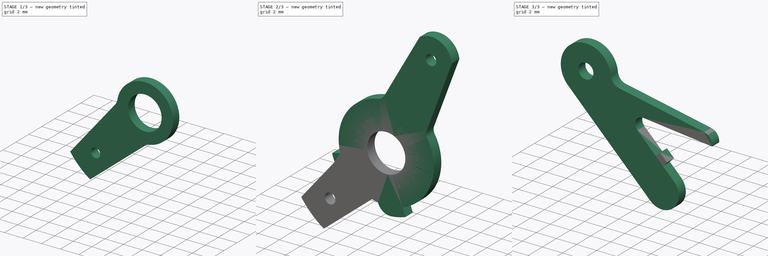
[diagram: build sequence overview — one tinted view per stage of 3, left to right]
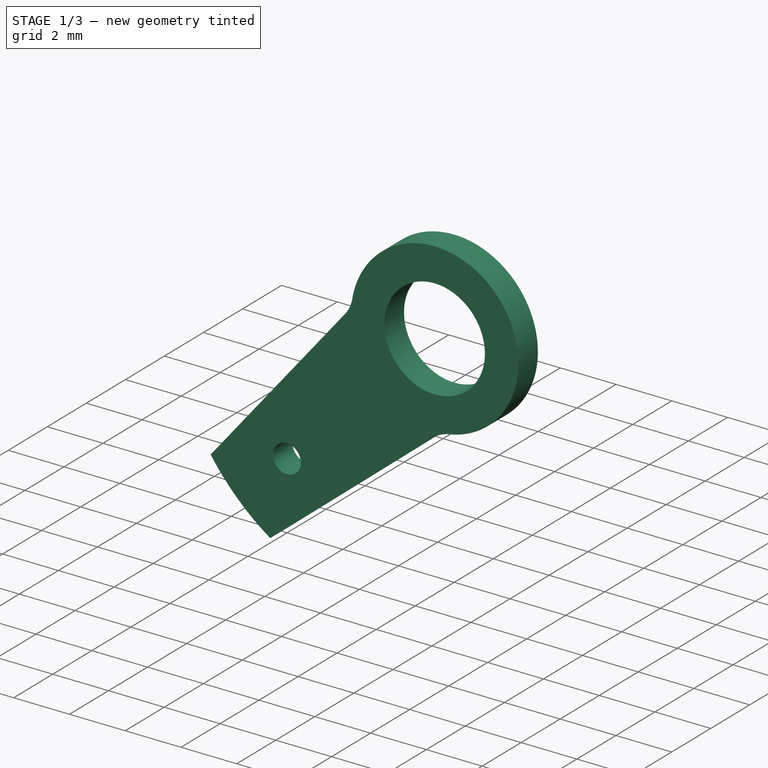
[diagram: stage 1 of 3 — iso view after this stage's code; geometry added in this stage tinted green]
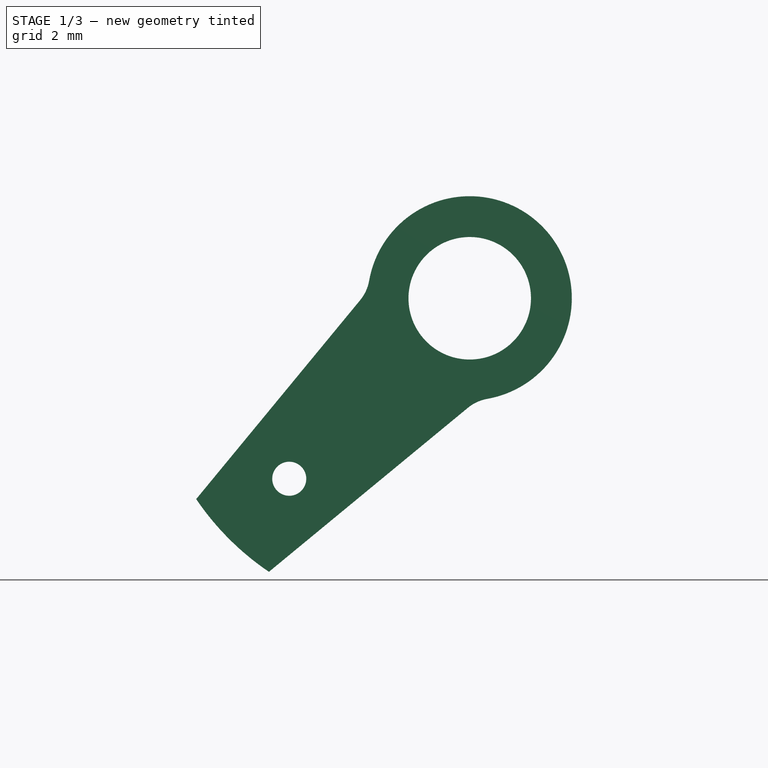
[diagram: stage 1 of 3 — front view after this stage's code; geometry added in this stage tinted green]
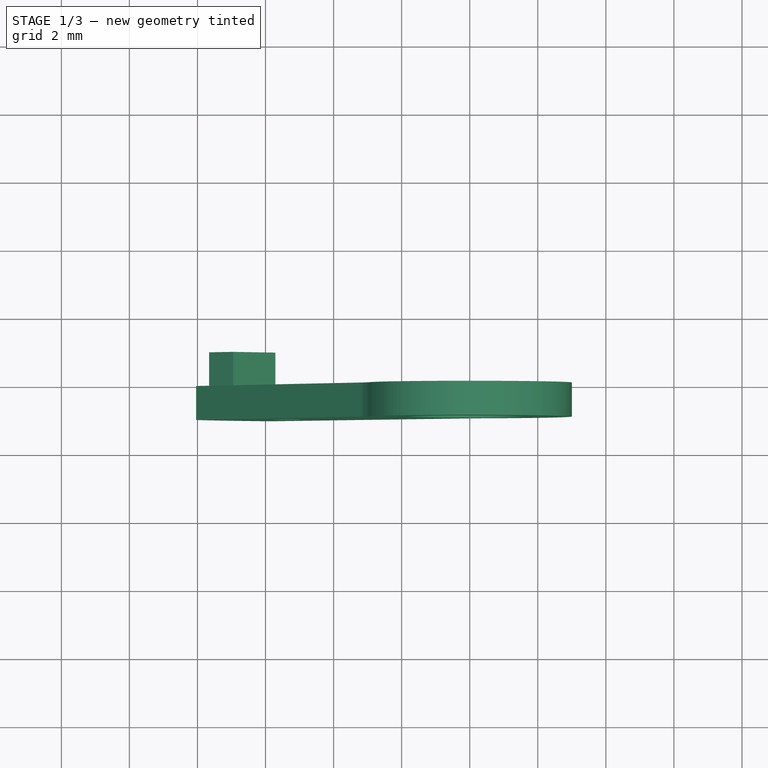
[diagram: stage 1 of 3 — top view after this stage's code; geometry added in this stage tinted green]
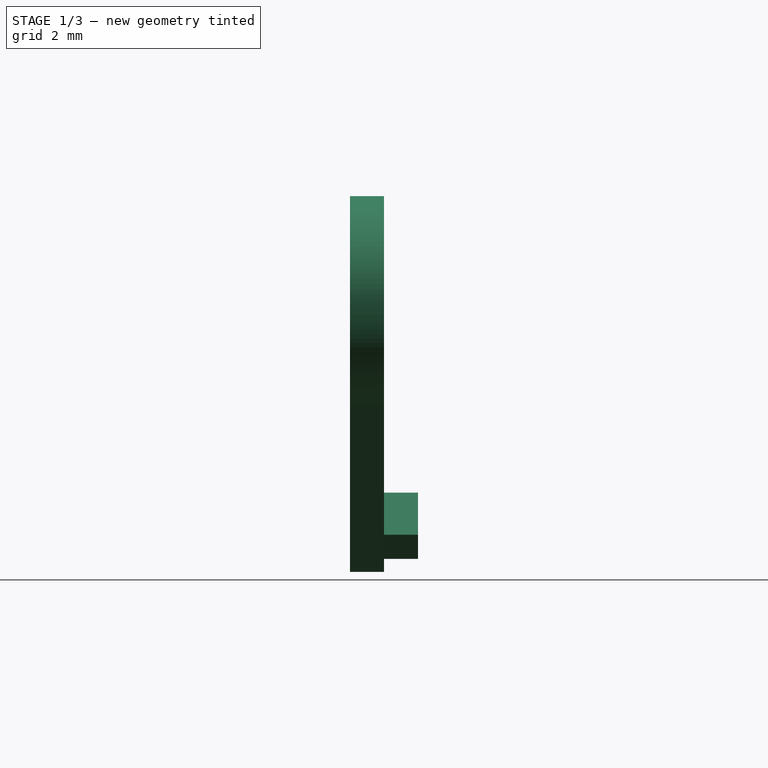
[diagram: stage 1 of 3 — right view after this stage's code; geometry added in this stage tinted green]
FCSTD DOCUMENT  (FreeCAD 0.19R24366 (Git))
Label: corliss
License: All rights reserved
LicenseURL: http://en.wikipedia.org/wiki/All_rights_reserved
objects: Sketcher::SketchObject×5, PartDesign::Pad×5, App::Part×5, PartDesign::Body×4, PartDesign::ShapeBinder×3, PartDesign::CoordinateSystem×3, App::DocumentObjectGroup×3, Image::ImagePlane×1, Spreadsheet::Sheet×1, App::FeaturePython×1
note: 25 computed .brp shape members not serialized (recipe doc carries the construction recipe); baked Part::Feature solids carry a one-line shape summary decoded from their .brp

FEATURE [PartDesign::Body] Body  label="Governer Arm Body"
  Group = -> [Sketch001,Pad]
  Origin = -> Origin004
  Tip = -> Pad
FEATURE [PartDesign::Pad] Pad001  label="Arm Body Pad 1"
  Direction = (1,1,1)
  Length = 1
  Length2 = 100
  Placement = pos=(0,0,0) rot=(1,0,0;1.5708rad)
  Profile = -> Sketch
  Type = 0
FEATURE [Sketcher::SketchObject] Sketch002  label="Projected Block Front"
  ExternalGeometry = -> [Sketch]
  FullyConstrained = true
  Placement = pos=(0,0,0) rot=(1,0,0;1.5708rad)
  expr: Constraints[13] = <<Master Values>>.ArmProjectedBlockHeight
  expr: Constraints[12] = <<Master Values>>.ArmProjectedBlockBreadth
  sketch-geometry (6):
    g0: LineSegment StartX=0 StartY=0 StartZ=0 EndX=-5.3033 EndY=-5.3033 EndZ=0
    g1: LineSegment StartX=-5.3033 StartY=-5.3033 StartZ=0 EndX=-7.07107 EndY=-7.07107 EndZ=0
    g2: LineSegment StartX=-6.94874 StartY=-5.7113 StartZ=0 EndX=-5.7113 EndY=-6.94874 EndZ=0
    g3: LineSegment StartX=-5.7113 StartY=-6.94874 StartZ=0 EndX=-6.41841 EndY=-7.65585 EndZ=0
    g4: LineSegment StartX=-6.94874 StartY=-5.7113 StartZ=0 EndX=-7.65585 EndY=-6.41841 EndZ=0
    g5: LineSegment StartX=-7.65585 StartY=-6.41841 StartZ=0 EndX=-6.41841 EndY=-7.65585 EndZ=0
  constraints (16):
    c: Coincident(g0,g-1)
    c: Coincident(g0,g-4)
    c: Coincident(g1,g0)
    c: PointOnObject(g1,g-3)
    c: Parallel(g0,g1)
    c: Coincident(g3,g2)
    c: PointOnObject(g3,g-3)
    c: Coincident(g4,g2)
    c: PointOnObject(g4,g-3)
    c: Perpendicular(g2,g4)
    c: Perpendicular(g3,g2)
    c: Symmetric(g2,g2,g1)
    c: Distance(g2) = 1.75
    c: Distance(g4) = 1
    c: Coincident(g5,g3)
    c: Coincident(g4,g5)
FEATURE [PartDesign::Pad] Pad002  label="Projected Block"
  BaseFeature = -> Pad001
  Direction = (1,0,1)
  Length = 1
  Length2 = 100
  Placement = pos=(0,0,0) rot=(1,0,0;1.5708rad)
  Profile = -> Sketch002
  Reversed = true
  Type = 0
  expr: Length = <<Master Values>>.ArmProjectedBlockThinkness
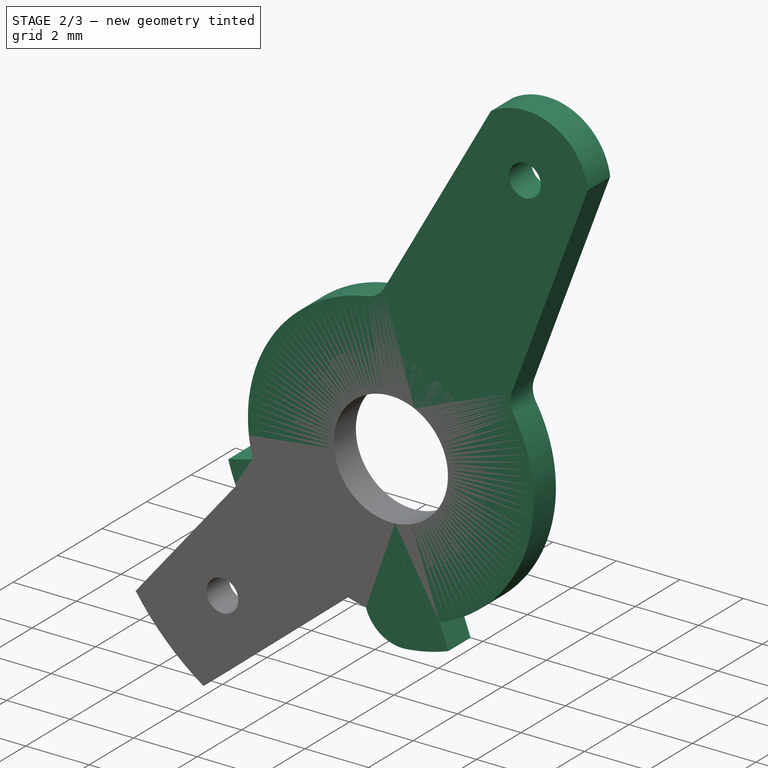
[diagram: stage 2 of 3 — iso view after this stage's code; geometry added in this stage tinted green]
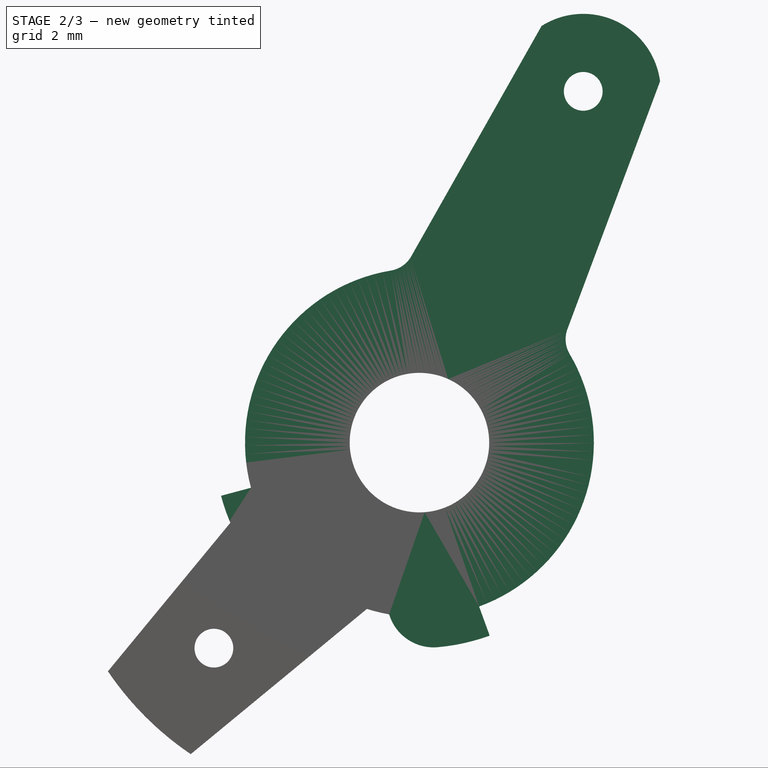
[diagram: stage 2 of 3 — front view after this stage's code; geometry added in this stage tinted green]
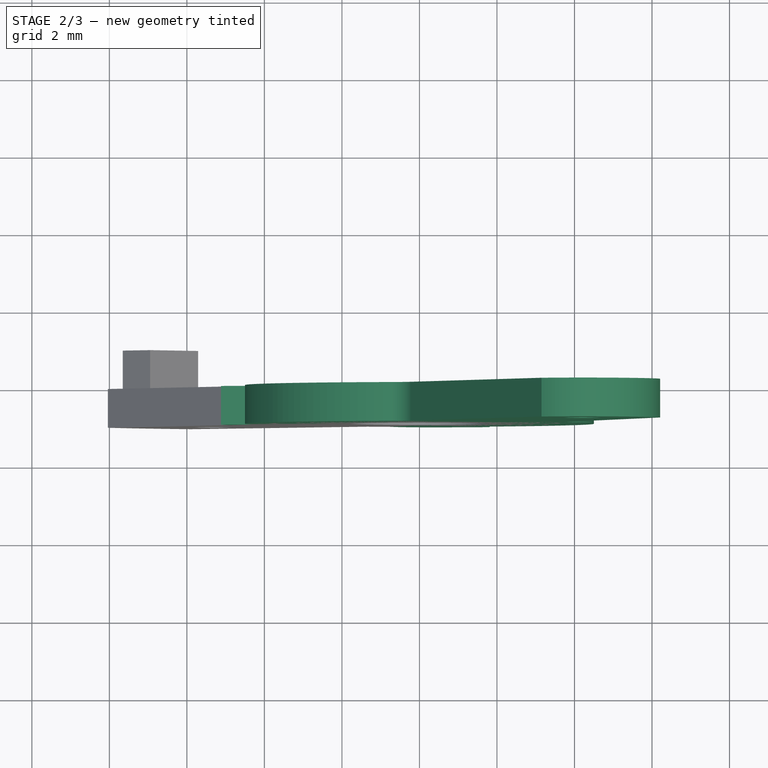
[diagram: stage 2 of 3 — top view after this stage's code; geometry added in this stage tinted green]
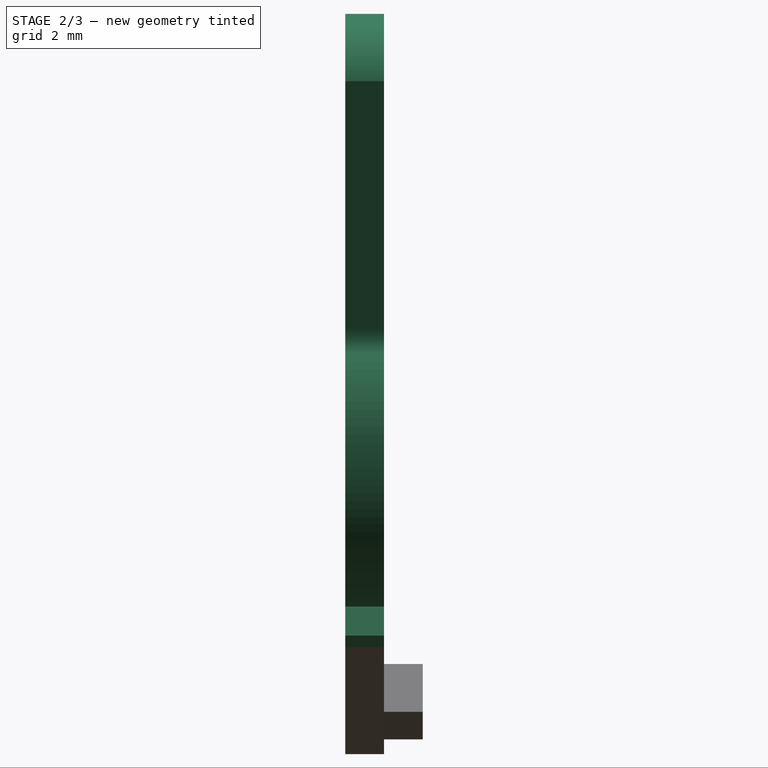
[diagram: stage 2 of 3 — right view after this stage's code; geometry added in this stage tinted green]
FEATURE [Sketcher::SketchObject] Sketch  label="Arm Front"
  FullyConstrained = true
  MapMode = 5
  Placement = pos=(0,0,0) rot=(1,0,0;1.5708rad)
  expr: Constraints[27] = <<Master Values>>.ArmDashpotPinOffset
  expr: Constraints[23] = <<Master Values>>.ArmRadiusAngle
  expr: Constraints[24] = <<Master Values>>.ArmRadiusAngle
  expr: Constraints[12] = <<Master Values>>.ArmFilletRadius
  expr: Constraints[9] = <<Master Values>>.ValveStemRadius
  expr: Constraints[14] = <<Master Values>>.ArmTaperAngle
  expr: Constraints[28] = <<Master Values>>.DashpotPinRadius
  expr: Constraints[11] = <<Master Values>>.ArmLength
  expr: Constraints[13] = <<Master Values>>.ArmFilletRadius
  expr: Constraints[16] = 11° / 2
  expr: Constraints[18] = <<Master Values>>.ArmAngle
  expr: Constraints[10] = <<Master Values>>.ArmRadius
  expr: Constraints[17] = <<Master Values>>.ArmEndRadius
  sketch-geometry (11):
    g0: Circle CenterX=0 CenterY=0 CenterZ=0 NormalX=0 NormalY=0 NormalZ=1 AngleXU=0 Radius=1.8
    g1: ArcOfCircle CenterX=0 CenterY=0 CenterZ=0 NormalX=0 NormalY=0 NormalZ=1 AngleXU=0 Radius=3 StartAngle=4.88692 EndAngle=9.25025
    g2: LineSegment StartX=0 StartY=0 StartZ=0 EndX=-7.07107 EndY=-7.07107 EndZ=0
    g3: LineSegment StartX=-3.2209 StartY=-0.057093 StartZ=0 EndX=-8.03787 EndY=-5.90054 EndZ=0
    g4: LineSegment StartX=-0.057093 StartY=-3.2209 StartZ=0 EndX=-5.90054 EndY=-8.03787 EndZ=0
    g5: ArcOfCircle CenterX=-4.18543 CenterY=0.738005 CenterZ=0 NormalX=0 NormalY=0 NormalZ=1 AngleXU=0 Radius=1.25 StartAngle=5.59378 EndAngle=6.10865
    g6: ArcOfCircle CenterX=0.738005 CenterY=-4.18543 CenterZ=0 NormalX=0 NormalY=0 NormalZ=1 AngleXU=0 Radius=1.25 StartAngle=1.74533 EndAngle=2.2602
    g7: ArcOfCircle CenterX=-1.41421 CenterY=-1.41421 CenterZ=0 NormalX=0 NormalY=0 NormalZ=1 AngleXU=0 Radius=8 StartAngle=3.73693 EndAngle=4.11705
    g8: LineSegment StartX=0 StartY=0 StartZ=0 EndX=-2.95442 EndY=0.520945 EndZ=0
    g9: LineSegment StartX=0.520945 StartY=-2.95442 StartZ=0 EndX=0 EndY=0 EndZ=0
    g10: Circle CenterX=-5.3033 CenterY=-5.3033 CenterZ=0 NormalX=0 NormalY=0 NormalZ=1 AngleXU=0 Radius=0.5
  constraints (29):
    c: Coincident(g1,g0)
    c: Coincident(g2,g0)
    c: Tangent(g1,g5) = 1.5708
    c: Tangent(g3,g5) = 1.5708
    c: Tangent(g1,g6) = 1.5708
    c: Tangent(g4,g6) = -1.5708
    c: Coincident(g7,g3)
    c: Coincident(g7,g4)
    c: PointOnObject(g2,g7)
    c: Radius(g0) = 1.8
    c: Radius(g1) = 3
    c: Distance(g2) = 10
    c: Radius(g5) = 1.25
    c: Radius(g6) = 1.25
    c: Angle(g4,g3) = 0.191986
    c: Perpendicular(g7,g2)
    c: Angle(g2,g3) = 0.0959931
    c: Radius(g7) = 8
    c: Angle(g2,g-2) = 0.785398
    c: Coincident(g8,g0)
    c: Coincident(g8,g1)
    c: Coincident(g9,g1)
    c: Coincident(g9,g0)
    c: Angle(g8,g2) = 0.959931
    c: Angle(g2,g9) = 0.959931
    c: Coincident(g-1,g0)
    c: PointOnObject(g10,g2)
    c: Distance(g2,g10) = 2.5
    c: Radius(g10) = 0.5
FEATURE [Image::ImagePlane] ImagePlane  label="Corliss Valve"
  Placement = pos=(-5.15,0.1,-4.22) rot=(-1,0,0;4.71239rad)
  XSize = 24
  YSize = 33
FEATURE [Spreadsheet::Sheet] Spreadsheet  label="Master Values"
  cells = A1=ValveStemRadius; B1(ValveStemRadius)==1.8mm; A2=ValveStemLength; B2(ValveStemLength)==30mm; A3=ArmRadius; B3(ArmRadius)==3mm; A4=ArmRadiusAngle; B4(ArmRadiusAngle)==55deg; A5=ArmAngle; B5(ArmAngle)==45deg; A6=ArmLength; B6(ArmLength)==10mm; A7=ArmTaperAngle; B7(ArmTaperAngle)==11deg; A8=ArmFilletRadius; B8(ArmFilletRadius)==1.25mm; A9=ArmEndRadius; B9(ArmEndRadius)==8mm; A10=ArmThinkness; B10(ArmThinkness)==1mm; A11=ArmDashpotPinOffset; B11(ArmDashpotPinOffset)==2.5mm; A12=ArmProjectedBlockBreadth; B12(ArmProjectedBlockBreadth)==1.75mm; A13=ArmProjectedBlockHeight; B13(ArmProjectedBlockHeight)==1mm; A14=ArmProjectedBlockThinkness; B14(ArmProjectedBlockThinkness)==1mm; A15=DashpotPinRadius; B15(DashpotPinRadius)==0.5mm; A16=GovernerArmThickness; B16(GovernerArmThickness)==1mm; A17=GovenerArmRadius; B17(GovenerArmRadius)==4.5mm; A18=GovernerArmRadiusAngle; B18(GovernerArmRadiusAngle)==55deg; A19=GovernerArmLength; B19(GovernerArmLength)==12mm; A20=GovernerArmAngle; B20(GovernerArmAngle)==25deg; A21=GovernerArmTaperAngle; B21(GovernerArmTaperAngle)==9deg; A22=GovernerArmFilletRadius; B22(GovernerArmFilletRadius)==0.75mm; A23=GovernerArmEndRadius; B23(GovernerArmEndRadius)==2mm; A24=GovernerArmGovernerPinOffset; B24(GovernerArmGovernerPinOffset)==2mm; A25=GovernerArmReleaseCamStartAngle; B25(GovernerArmReleaseCamStartAngle)==165deg; A26=GovernerArmReleaseCamRolloffRadius; B26(GovernerArmReleaseCamRolloffRadius)==1.2mm; A27=GovernerArmReleaseCamEndAngle; B27(GovernerArmReleaseCamEndAngle)==30deg; A28=GovernerArmReleaseCamHeight; B28(GovernerArmReleaseCamHeight)==0.8mm; A29=GovernerArmSafteyCamStartAngle; B29(GovernerArmSafteyCamStartAngle)==70deg; A30=GovernerArmSafteyCamRolloffRadius; B30(GovernerArmSafteyCamRolloffRadius)==B26; A31=GovernerArmSafteyCamEndAngle; B31(GovernerArmSafteyCamEndAngle)==B27; A32=GovernerArmSafteyCamHeight; B32(GovernerArmSafteyCamHeight)==B28; A33=GovernerPinRadius; B33(GovernerPinRadius)==0.5mm; A34=BellCrankThickness; B34(BellCrankThickness)==1mm; A35=BellCrankRadius; B35(BellCrankRadius)==B17; A36=BellCrankWristLength; B36(BellCrankWristLength)==16mm; A37=BellCrankClawLength; B37(BellCrankClawLength)==16mm; A38=BellCrankWristEndRadius; B38(BellCrankWristEndRadius)==3mm; A39=BellCrankClawEndRadius; B39(BellCrankClawEndRadius)==2.5mm; A40=BellCrankClawAngle; B40(BellCrankClawAngle)==172deg; A41=BellCrankWristAngle; B41(BellCrankWristAngle)==82deg; A42=BellCrankFilletRadius; B42(BellCrankFilletRadius)==3mm; A43=WristPlatePinRadius; B43(WristPlatePinRadius)==0.5mm; A44=ClawPinRadius; B44(ClawPinRadius)==0.75mm; A45=ClawThickness; B45(ClawThickness)==1mm; A46=ClawRadius; B46(ClawRadius)==B39; A47=ClawDriveArmAngle; B47(ClawDriveArmAngle)==45deg; A48=ClawDriveArmLength; B48(ClawDriveArmLength)==13mm; A49=ClawDriveArmEndRadius; B49(ClawDriveArmEndRadius)==1.5mm; A50=ClawReleaseArmEndRadius; B50(ClawReleaseArmEndRadius)==1mm; A51=ClawReleaseArmAngle; B51(ClawReleaseArmAngle)==5deg; A52=ClawReleaseArmLength; B52(ClawReleaseArmLength)==12mm; A53=ClawArmFilletRadius; B53(ClawArmFilletRadius)==0.75mm; A54=ClawReleaseArmFilletRadius; B54(ClawReleaseArmFilletRadius)==1mm; A55=ClawDriveBlockLength; B55(ClawDriveBlockLength)==1mm; A56=ClawDriveBlockHeightProportion; B56(ClawDriveBlockHeightProportion)=0.75
FEATURE [Sketcher::SketchObject] Sketch001  label="Governer Arm Front"
  FullyConstrained = true
  MapMode = 5
  Placement = pos=(0,0,0) rot=(1,0,0;1.5708rad)
  Support = -> [XZ_Plane004]
  expr: Constraints[13] = <<Master Values>>.GovernerArmRadiusAngle / 2
  expr: Constraints[49] = <<Master Values>>.GovernerArmSafteyCamEndAngle
  expr: Constraints[45] = <<Master Values>>.GovernerArmSafteyCamHeight
  expr: Constraints[42] = <<Master Values>>.GovernerArmSafteyCamStartAngle
  expr: Constraints[9] = <<Master Values>>.GovernerArmTaperAngle / 2
  expr: Constraints[53] = <<Master Values>>.GovernerArmSafteyCamRolloffRadius
  expr: Constraints[40] = <<Master Values>>.GovernerArmReleaseCamRolloffRadius
  expr: Constraints[7] = <<Master Values>>.GovernerPinRadius
  expr: Constraints[29] = <<Master Values>>.GovernerArmReleaseCamStartAngle
  expr: Constraints[34] = <<Master Values>>.GovernerArmReleaseCamHeight
  expr: Constraints[35] = <<Master Values>>.GovernerArmReleaseCamEndAngle
  expr: Constraints[14] = <<Master Values>>.GovernerArmRadiusAngle / 2
  expr: Constraints[27] = <<Master Values>>.GovernerArmEndRadius
  expr: Constraints[19] = <<Master Values>>.GovernerArmFilletRadius
  expr: Constraints[20] = <<Master Values>>.GovernerArmFilletRadius
  expr: Constraints[11] = <<Master Values>>.GovernerArmLength
  expr: .Constraints.GovernerArmRadius = <<Master Values>>.GovenerArmRadius
  expr: Constraints[10] = <<Master Values>>.GovernerArmTaperAngle / 2
  expr: Constraints[5] = <<Master Values>>.GovernerArmAngle
  expr: .Constraints.GovernerPinRadius = <<Master Values>>.ValveStemRadius
  expr: Constraints[8] = <<Master Values>>.GovernerArmGovernerPinOffset
  sketch-geometry (23):
    g0: ArcOfCircle CenterX=0 CenterY=0 CenterZ=0 NormalX=0 NormalY=0 NormalZ=1 AngleXU=0 Radius=4.5 StartAngle=1.73588 EndAngle=3.40339
    g1: Circle CenterX=0 CenterY=0 CenterZ=0 NormalX=0 NormalY=0 NormalZ=1 AngleXU=0 Radius=1.8
    g2: LineSegment StartX=0 StartY=0 StartZ=0 EndX=5.07142 EndY=10.8757 EndZ=0
    g3: LineSegment StartX=-0.209979 StartY=4.80931 StartZ=0 EndX=3.15071 EndY=10.7493 EndZ=0
    g4: LineSegment StartX=3.81912 StartY=2.93051 StartZ=0 EndX=6.20921 EndY=9.3231 EndZ=0
    g5: Circle CenterX=4.22618 CenterY=9.06308 CenterZ=0 NormalX=0 NormalY=0 NormalZ=1 AngleXU=0 Radius=0.5
    g6: LineSegment StartX=-0.209979 StartY=4.80931 StartZ=0 EndX=0 EndY=0 EndZ=0
    g7: LineSegment StartX=3.81912 StartY=2.93051 StartZ=0 EndX=0 EndY=0 EndZ=0
    g8: ArcOfCircle CenterX=4.52162 CenterY=2.66786 CenterZ=0 NormalX=0 NormalY=0 NormalZ=1 AngleXU=0 Radius=0.75 StartAngle=2.7838 EndAngle=3.67464
    g9: ArcOfCircle CenterX=-0.862746 CenterY=5.17863 CenterZ=0 NormalX=0 NormalY=0 NormalZ=1 AngleXU=0 Radius=0.75 StartAngle=4.87747 EndAngle=5.76831
    g10: ArcOfCircle CenterX=4.22618 CenterY=9.06308 CenterZ=0 NormalX=0 NormalY=0 NormalZ=1 AngleXU=0 Radius=2 StartAngle=0.130381 EndAngle=2.13855
    g11: LineSegment StartX=0 StartY=0 StartZ=0 EndX=-4.34667 EndY=-1.16469 EndZ=0
    g12: LineSegment StartX=0 StartY=0 StartZ=0 EndX=-3.18198 EndY=-3.18198 EndZ=0
    g13: LineSegment StartX=-4.34667 StartY=-1.16469 StartZ=0 EndX=-5.11941 EndY=-1.37174 EndZ=0
    g14: ArcOfCircle CenterX=0 CenterY=0 CenterZ=0 NormalX=0 NormalY=0 NormalZ=1 AngleXU=0 Radius=5.3 StartAngle=3.40339 EndAngle=3.66283
    g15: ArcOfCircle CenterX=-3.55554 CenterY=-2.04161 CenterZ=0 NormalX=0 NormalY=0 NormalZ=1 AngleXU=0 Radius=1.2 StartAngle=3.66283 EndAngle=5.02895
    g16: LineSegment StartX=0 StartY=0 StartZ=0 EndX=1.53909 EndY=-4.22862 EndZ=0
    g17: LineSegment StartX=1.53909 StartY=-4.22862 StartZ=0 EndX=1.81271 EndY=-4.98037 EndZ=0
    g18: ArcOfCircle CenterX=0 CenterY=0 CenterZ=0 NormalX=0 NormalY=0 NormalZ=1 AngleXU=0 Radius=5.3 StartAngle=4.80202 EndAngle=5.06145
    g19: LineSegment StartX=0 StartY=0 StartZ=0 EndX=-0.781417 EndY=-4.43163 EndZ=0
    g20: ArcOfCircle CenterX=0.366987 CenterY=-4.08354 CenterZ=0 NormalX=0 NormalY=0 NormalZ=1 AngleXU=0 Radius=1.2 StartAngle=3.4359 EndAngle=4.80202
    g21: ArcOfCircle CenterX=0 CenterY=0 CenterZ=0 NormalX=0 NormalY=0 NormalZ=1 AngleXU=0 Radius=4.5 StartAngle=5.06145 EndAngle=6.81624
    g22: ArcOfCircle CenterX=0 CenterY=0 CenterZ=0 NormalX=0 NormalY=0 NormalZ=1 AngleXU=0 Radius=4.5 StartAngle=3.92699 EndAngle=4.53786
  constraints (63):
    c: Coincident(g0,g-1)  'GovernerArmCentre'
    c: Radius(g1) = 1.8  'GovernerPinRadius'
    c: Radius(g0) = 4.5  'GovernerArmRadius'
    c: Coincident(g0,g1)  'GovernerArmCentre2'
    c: Coincident(g2,g0)
    c: Angle(g2,g-2) = 0.436332
    c: PointOnObject(g5,g2)
    c: Radius(g5) = 0.5
    c: Distance(g5,g2) = 2
    c: Angle(g3,g2) = 0.0785398
    c: Angle(g2,g4) = 0.0785398
    c: Distance(g2) = 12
    c: Coincident(g7,g6)
    c: Angle(g7,g2) = 0.479966
    c: Angle(g2,g6) = 0.479966
    c: Coincident(g6,g0)
    c: Tangent(g4,g8) = 1.5708
    c: Tangent(g3,g9) = -1.5708
    c: Tangent(g0,g9) = 1.5708
    c: Radius(g9) = 0.75
    c: Radius(g8) = 0.75
    c: Coincident(g3,g6)
    c: Coincident(g4,g7)
    c: Coincident(g10,g3)
    c: PointOnObject(g2,g10)
    c: Coincident(g10,g4)
    c: PointOnObject(g10,g2)
    c: Radius(g10) = 2
    c: Coincident(g11,g0)
    c: Angle(g11,g-1) = 2.87979
    c: Coincident(g12,g0)
    c: PointOnObject(g12,g0)
    c: Coincident(g13,g11)
    c: Parallel(g13,g11)
    c: Distance(g13) = 0.8
    c: Angle(g11,g12) = 0.523599
    c: Coincident(g13,g14)
    c: Coincident(g14,g0)
    c: Coincident(g15,g12)
    c: Tangent(g14,g15) = -1.5708
    c: Radius(g15) = 1.2
    c: Coincident(g16,g0)
    c: Angle(g16,g-1) = 1.22173
    c: Coincident(g17,g16)
    c: Parallel(g16,g17)
    c: Distance(g17) = 0.8
    c: Coincident(g18,g0)
    c: Coincident(g18,g17)
    c: Coincident(g19,g0)
    c: Angle(g19,g16) = 0.523599
    c: PointOnObject(g19,g0)
    c: Coincident(g20,g19)
    c: Tangent(g20,g18) = -1.5708
    c: Radius(g20) = 1.2
    c: Equal(g0,g21)
    c: PointOnObject(g22,g20)
    c: Coincident(g21,g16)
    c: Coincident(g0,g21)
    c: Equal(g0,g22)
    c: Coincident(g0,g11)
    c: PointOnObject(g22,g15)
    c: Coincident(g0,g22)
    c: Tangent(g21,g8) = 1.5708
FEATURE [PartDesign::Pad] Pad
  Direction = (1,1,1)
  Length = 1
  Length2 = 100
  Placement = pos=(0,0,0) rot=(1,0,0;1.5708rad)
  Profile = -> Sketch001
  Type = 0
  expr: Length = <<Master Values>>.GovernerArmThickness
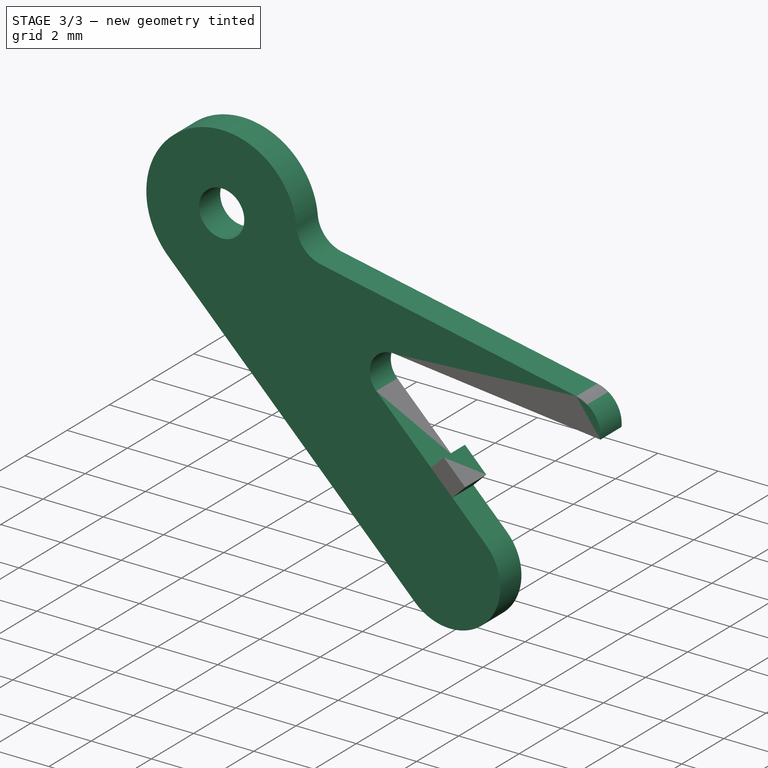
[diagram: stage 3 of 3 — iso view after this stage's code; geometry added in this stage tinted green]
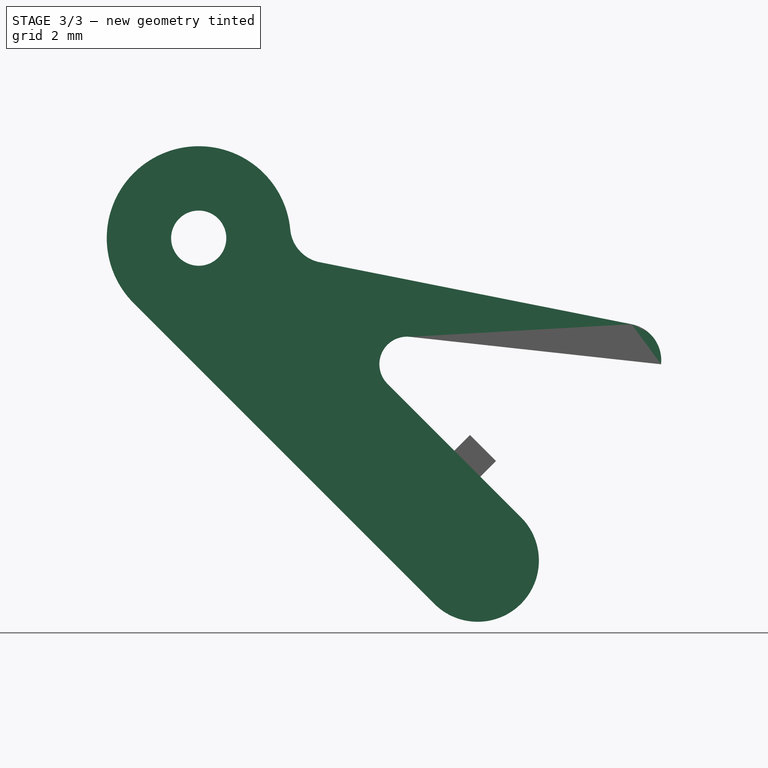
[diagram: stage 3 of 3 — front view after this stage's code; geometry added in this stage tinted green]
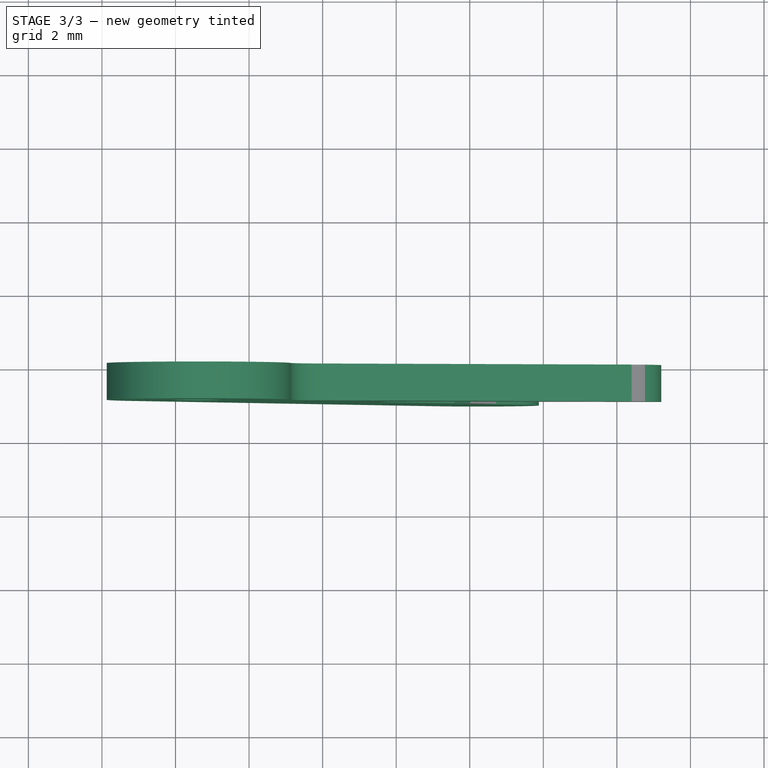
[diagram: stage 3 of 3 — top view after this stage's code; geometry added in this stage tinted green]
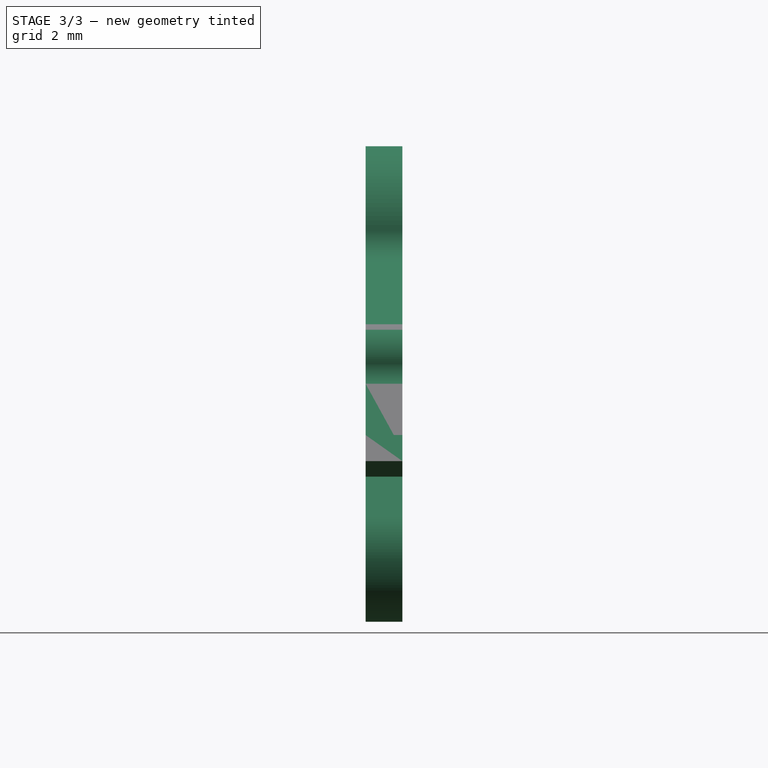
[diagram: stage 3 of 3 — right view after this stage's code; geometry added in this stage tinted green]
FEATURE [PartDesign::Body] Body001  label="Arm Body"
  Group = -> [Sketch,Pad001,Sketch002,Pad002]
  Origin = -> Origin003
  Tip = -> Pad002
FEATURE [Sketcher::SketchObject] Sketch003  label="Bell Crank Front"
  FullyConstrained = true
  MapMode = 5
  Placement = pos=(0,0,0) rot=(1,0,0;1.5708rad)
  Support = -> [XZ_Plane006]
  expr: Constraints[30] = <<Master Values>>.ValveStemRadius
  expr: Constraints[24] = <<Master Values>>.BellCrankFilletRadius
  expr: Constraints[7] = <<Master Values>>.BellCrankClawLength
  expr: Constraints[28] = <<Master Values>>.WristPlatePinRadius
  expr: Constraints[26] = <<Master Values>>.ClawPinRadius
  expr: Constraints[6] = <<Master Values>>.BellCrankWristLength
  expr: Constraints[5] = <<Master Values>>.BellCrankClawAngle
  expr: Constraints[4] = <<Master Values>>.BellCrankWristAngle
  expr: Constraints[10] = <<Master Values>>.BellCrankClawEndRadius
  expr: Constraints[1] = <<Master Values>>.BellCrankRadius
  sketch-geometry (13):
    g0: ArcOfCircle CenterX=0 CenterY=0 CenterZ=0 NormalX=0 NormalY=0 NormalZ=1 AngleXU=0 Radius=4.5 StartAngle=0 EndAngle=1.85912
    g1: LineSegment StartX=0 StartY=0 StartZ=0 EndX=-15.8443 EndY=-2.22677 EndZ=0
    g2: LineSegment StartX=0 StartY=0 StartZ=0 EndX=2.22677 EndY=-15.8443 EndZ=0
    g3: ArcOfCircle CenterX=-13.3686 CenterY=-1.87884 CenterZ=0 NormalX=0 NormalY=0 NormalZ=1 AngleXU=0 Radius=2.5 StartAngle=1.85912 EndAngle=4.70332
    g4: LineSegment StartX=-14.0795 StartY=0.517969 StartZ=0 EndX=-1.27955 EndY=4.31425 EndZ=0
    g5: LineSegment StartX=-13.3913 StartY=-4.37873 StartZ=0 EndX=-5.6391 EndY=-4.44904 EndZ=0
    g6: ArcOfCircle CenterX=1.85925 CenterY=-13.2292 CenterZ=0 NormalX=0 NormalY=0 NormalZ=1 AngleXU=0 Radius=2.64075 StartAngle=3.42085 EndAngle=6.28319
    g7: LineSegment StartX=4.5 StartY=-13.2292 StartZ=0 EndX=4.5 EndY=0 EndZ=0
    g8: LineSegment StartX=-2.78252 StartY=-6.62201 StartZ=0 EndX=-0.679206 EndY=-13.9571 EndZ=0
    g9: ArcOfCircle CenterX=-5.6663 CenterY=-7.44892 CenterZ=0 NormalX=0 NormalY=0 NormalZ=1 AngleXU=0 Radius=3 StartAngle=0.279253 EndAngle=1.56173
    g10: Circle CenterX=-13.3686 CenterY=-1.87884 CenterZ=0 NormalX=0 NormalY=0 NormalZ=1 AngleXU=0 Radius=0.75
    g11: Circle CenterX=1.85925 CenterY=-13.2292 CenterZ=0 NormalX=0 NormalY=0 NormalZ=1 AngleXU=0 Radius=0.5
    g12: Circle CenterX=0 CenterY=0 CenterZ=0 NormalX=0 NormalY=0 NormalZ=1 AngleXU=0 Radius=1.8
  constraints (31):
    c: Coincident(g0,g-1)
    c: Radius(g0) = 4.5
    c: Coincident(g1,g-1)
    c: Coincident(g2,g-1)
    c: Angle(g2,g-1) = 1.43117
    c: Angle(g1,g-1) = 3.00197
    c: Distance(g2) = 16
    c: Distance(g1) = 16
    c: PointOnObject(g3,g1)
    c: PointOnObject(g1,g3)
    c: Radius(g3) = 2.5
    c: Tangent(g0,g5)
    c: PointOnObject(g6,g2)
    c: PointOnObject(g2,g6)
    c: Vertical(g7)
    c: Tangent(g8,g0)
    c: Tangent(g0,g4) = 1.5708
    c: Tangent(g0,g7) = -1.5708
    c: Tangent(g3,g5) = -1.5708
    c: Tangent(g3,g4) = 1.5708
    c: Tangent(g6,g8) = -1.5708
    c: Tangent(g6,g7) = -1.5708
    c: Tangent(g5,g9) = 1.5708
    c: Tangent(g8,g9) = 1.5708
    c: Radius(g9) = 3
    c: Coincident(g10,g3)
    c: Radius(g10) = 0.75
    c: Coincident(g11,g6)
    c: Radius(g11) = 0.5
    c: Coincident(g12,g0)
    c: Radius(g12) = 1.8
FEATURE [PartDesign::Pad] Pad003  label="Bell Crank Pad"
  Direction = (1,1,1)
  Length = 1
  Length2 = 100
  Placement = pos=(0,0,0) rot=(1,0,0;1.5708rad)
  Profile = -> Sketch003
  Type = 0
  expr: Length = <<Master Values>>.BellCrankThickness
FEATURE [PartDesign::Body] Body002  label="Bell Crank Body"
  Group = -> [Sketch003,Pad003]
  Origin = -> Origin006
  Tip = -> Pad003
FEATURE [App::Part] Part002  label="Bell Crank"
  Group = -> [Body002]
  Origin = -> Origin005
  Placement = pos=(0,1,0) rot=(0,0,1;0rad)
FEATURE [PartDesign::ShapeBinder] ShapeBinder  label="BellCrankClawPin"
  Placement = pos=(0,-1,1e-15) rot=(1,0,0;1.5708rad)
  Support = -> [Pad003]
  TraceSupport = false
FEATURE [PartDesign::ShapeBinder] ShapeBinder001  label="GovernerArmBearingEdge"
  Placement = pos=(0,-1,1e-15) rot=(1,0,0;1.5708rad)
  Support = -> [Pad]
  TraceSupport = false
FEATURE [PartDesign::ShapeBinder] ShapeBinder002  label="ArmProjectedBlockBearingFace"
  Placement = pos=(0,0,0) rot=(1,0,0;1.5708rad)
  Support = -> [Pad002]
  TraceSupport = false
FEATURE [Sketcher::SketchObject] Sketch004  label="Claw Body Front"
  ExternalGeometry = -> [ShapeBinder,ShapeBinder001,ShapeBinder002]
  FullyConstrained = true
  MapMode = 5
  Placement = pos=(0,0,0) rot=(1,0,0;1.5708rad)
  Support = -> [XZ_Plane008]
  expr: Constraints[43] = <<Master Values>>.ClawPinRadius
  expr: Constraints[38] = <<Master Values>>.ClawDriveBlockLength
  expr: Constraints[13] = <<Master Values>>.ClawReleaseArmAngle
  expr: Constraints[29] = <<Master Values>>.ClawReleaseArmFilletRadius
  expr: Constraints[28] = <<Master Values>>.ClawArmFilletRadius
  expr: Constraints[16] = <<Master Values>>.ClawReleaseArmEndRadius
  expr: Constraints[3] = <<Master Values>>.ClawDriveArmLength
  expr: Constraints[1] = <<Master Values>>.ClawRadius
  expr: Constraints[33] = <<Master Values>>.GovernerArmReleaseCamHeight * <<Master Values>>.ClawDriveBlockHeightProportion
  expr: Constraints[23] = <<Master Values>>.ClawReleaseArmLength
  sketch-geometry (16):
    g0: ArcOfCircle CenterX=-13.3686 CenterY=-1.87884 CenterZ=0 NormalX=0 NormalY=0 NormalZ=1 AngleXU=0 Radius=2.5 StartAngle=0.0935292 EndAngle=3.92699
    g1: LineSegment StartX=-13.3686 StartY=-1.87884 StartZ=0 EndX=-4.17623 EndY=-11.0712 EndZ=0
    g2: LineSegment StartX=-15.1364 StartY=-3.6466 StartZ=0 EndX=-6.96231 EndY=-11.8207 EndZ=0
    g3: LineSegment StartX=-8.23702 StartY=-5.83724 StartZ=0 EndX=-6.41841 EndY=-7.65585 EndZ=0
    g4: ArcOfCircle CenterX=-5.78513 CenterY=-10.6435 CenterZ=0 NormalX=0 NormalY=0 NormalZ=1 AngleXU=0 Radius=1.66479 StartAngle=3.92699 EndAngle=7.06858
    g5: LineSegment StartX=-10.0789 StartY=-2.53277 StartZ=0 EndX=-1.5989 EndY=-4.21843 EndZ=0
    g6: LineSegment StartX=-7.62513 StartY=-4.56136 StartZ=0 EndX=-0.799794 EndY=-5.30798 EndZ=0
    g7: ArcOfCircle CenterX=-1.79386 CenterY=-5.19924 CenterZ=0 NormalX=0 NormalY=0 NormalZ=1 AngleXU=0 Radius=1 StartAngle=6.17423 EndAngle=7.65776
    g8: LineSegment StartX=-13.3686 StartY=-1.87884 StartZ=0 EndX=-1.5989 EndY=-4.21843 EndZ=0
    g9: ArcOfCircle CenterX=-7.70669 CenterY=-5.30691 CenterZ=0 NormalX=0 NormalY=0 NormalZ=1 AngleXU=0 Radius=0.75 StartAngle=1.46184 EndAngle=3.92699
    g10: ArcOfCircle CenterX=-9.88392 CenterY=-1.55196 CenterZ=0 NormalX=0 NormalY=0 NormalZ=1 AngleXU=0 Radius=1 StartAngle=3.23512 EndAngle=4.51617
    g11: LineSegment StartX=-6.41841 StartY=-7.65585 StartZ=0 EndX=-5.99415 EndY=-7.23158 EndZ=0
    g12: LineSegment StartX=-5.99415 StartY=-7.23158 StartZ=0 EndX=-5.28704 EndY=-7.93869 EndZ=0
    g13: LineSegment StartX=-5.28704 StartY=-7.93869 StartZ=0 EndX=-5.7113 EndY=-8.36296 EndZ=0
    g14: LineSegment StartX=-5.7113 StartY=-8.36296 StartZ=0 EndX=-4.60795 EndY=-9.46631 EndZ=0
    g15: Circle CenterX=-13.3686 CenterY=-1.87884 CenterZ=0 NormalX=0 NormalY=0 NormalZ=1 AngleXU=0 Radius=0.75
  constraints (44):
    c: Coincident(g0,g-3)
    c: Radius(g0) = 2.5
    c: Coincident(g1,g0)
    c: Distance(g1) = 13
    c: Parallel(g2,g1)
    c: Parallel(g1,g3)
    c: Coincident(g4,g14)
    c: PointOnObject(g1,g4)
    c: Coincident(g2,g4)
    c: Tangent(g3,g-5)
    c: Tangent(g4,g3)
    c: Tangent(g4,g2)
    c: Coincident(g0,g2)
    c: Angle(g5,g6) = 0.0872665
    c: Coincident(g7,g5)
    c: Coincident(g7,g6)
    c: Radius(g7) = 1
    c: Tangent(g7,g-4)
    c: Tangent(g7,g5)
    c: Perpendicular(g7,g6)
    c: PointOnObject(g0,g5)
    c: Coincident(g8,g0)
    c: Coincident(g8,g5)
    c: Distance(g8) = 12
    c: Tangent(g6,g9) = 1.5708
    c: Tangent(g3,g9) = -1.5708
    c: Tangent(g0,g10) = 1.5708
    c: Tangent(g5,g10) = -1.5708
    c: Radius(g9) = 0.75
    c: Radius(g10) = 1
    c: Tangent(g0,g2)
    c: Coincident(g11,g-5)
    c: Perpendicular(g3,g11)
    c: Distance(g11) = 0.6
    c: Coincident(g12,g11)
    c: Perpendicular(g12,g11)
    c: Coincident(g13,g12)
    c: Perpendicular(g3,g13)
    c: Distance(g12) = 1
    c: PointOnObject(g3,g11)
    c: Coincident(g14,g13)
    c: Tangent(g3,g14)
    c: Coincident(g15,g0)
    c: Radius(g15) = 0.75
FEATURE [PartDesign::Pad] Pad004  label="Claw Body Pad"
  Direction = (1,1,1)
  Length = 1
  Length2 = 100
  Placement = pos=(0,0,0) rot=(1,0,0;1.5708rad)
  Profile = -> Sketch004
  Type = 0
  expr: Length = <<Master Values>>.ClawThickness
FEATURE [PartDesign::Body] Body003  label="Claw Body"
  Group = -> [ShapeBinder,ShapeBinder001,Sketch004,ShapeBinder002,Pad004]
  Origin = -> Origin008
  Tip = -> Pad004
FEATURE [App::Part] Part003  label="Claw"
  Group = -> [Body003]
  Origin = -> Origin007
FEATURE [PartDesign::CoordinateSystem] LCS_Origin
  AttacherType = Attacher::AttachEngine3D
  MapMode = 2
  Support = -> [X_Axis009]
FEATURE [App::FeaturePython] Variables  # WARN: FeaturePython — macro-defined, semantics opaque (R4)
  Type = App::PropertyContainer
FEATURE [App::DocumentObjectGroup] Constraints
FEATURE [App::DocumentObjectGroup] Configurations
FEATURE [App::Part] Assembly
  AssemblyType = Part::Link
  Group = -> [LCS_Origin,Variables,Constraints,Configurations]
  Origin = -> Origin009
  Type = Assembly
FEATURE [PartDesign::CoordinateSystem] ArmLCS
  AttacherType = Attacher::AttachEngine3D
  MapMode = 11
  Placement = pos=(2e-16,0,0) rot=(0.57735,-0.57735,0.57735;2.0944rad)
  Support = -> [Sketch]
FEATURE [App::Part] Part001  label="Arm"
  Group = -> [Body001,ArmLCS]
  Origin = -> Origin002
  Placement = pos=(0,-1,0) rot=(0,0,1;0rad)
FEATURE [PartDesign::CoordinateSystem] GovernerArmLCS
  AttacherType = Attacher::AttachEngine3D
  MapMode = 11
  Placement = pos=(2e-16,0,0) rot=(0.57735,-0.57735,0.57735;2.0944rad)
  Support = -> [Sketch]
FEATURE [App::Part] Part  label="Governer Arm"
  Group = -> [Body,GovernerArmLCS]
  Origin = -> Origin
FEATURE [App::DocumentObjectGroup] Parts
  Group = -> [Part001,Part,Part002,Part003]
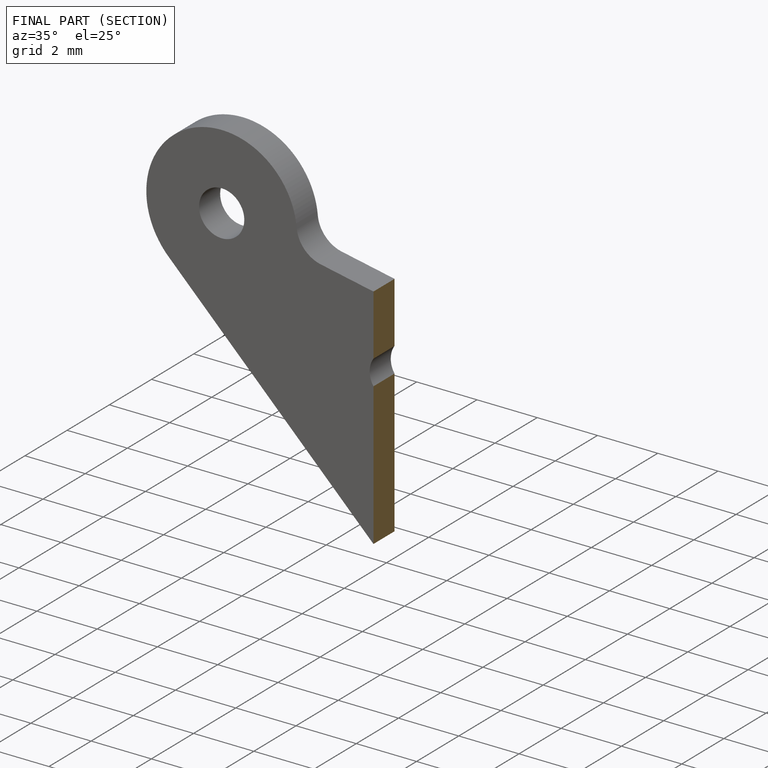
[diagram: finished part — half-section view (interior)]
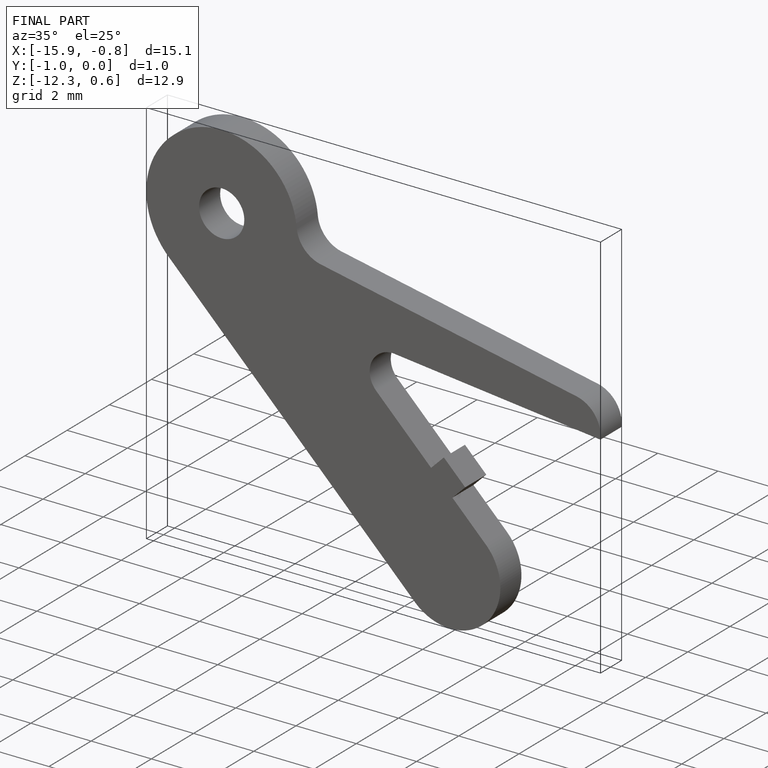
[diagram: finished part — iso view with bounding-box wireframe]
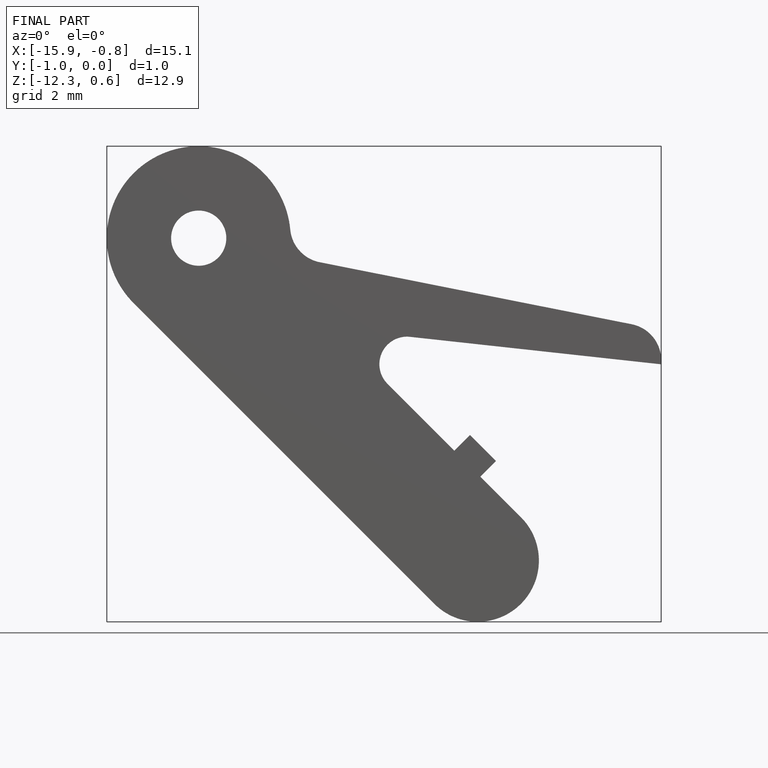
[diagram: finished part — front view with bounding-box wireframe]
